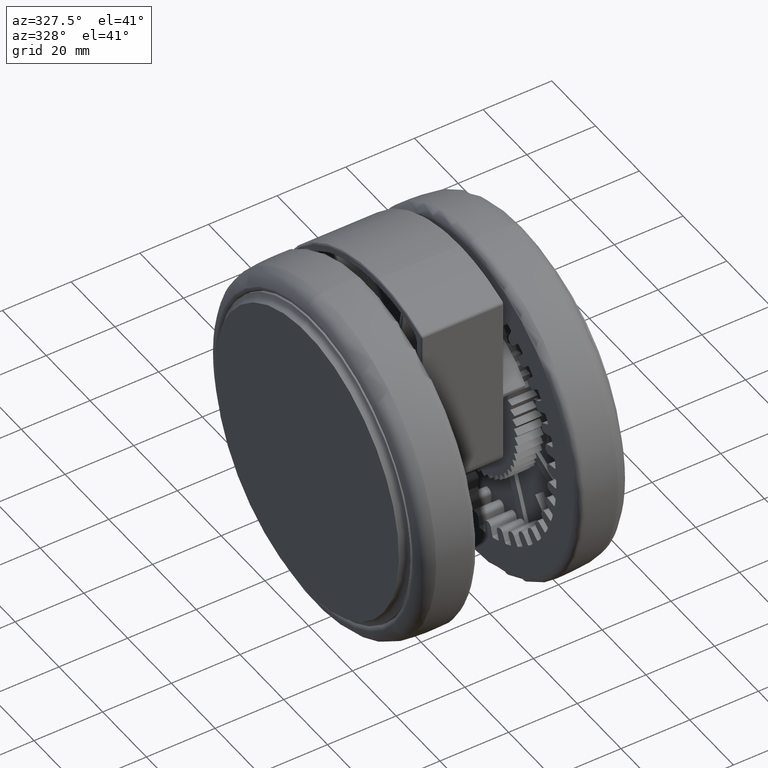
[diagram: clean part render]
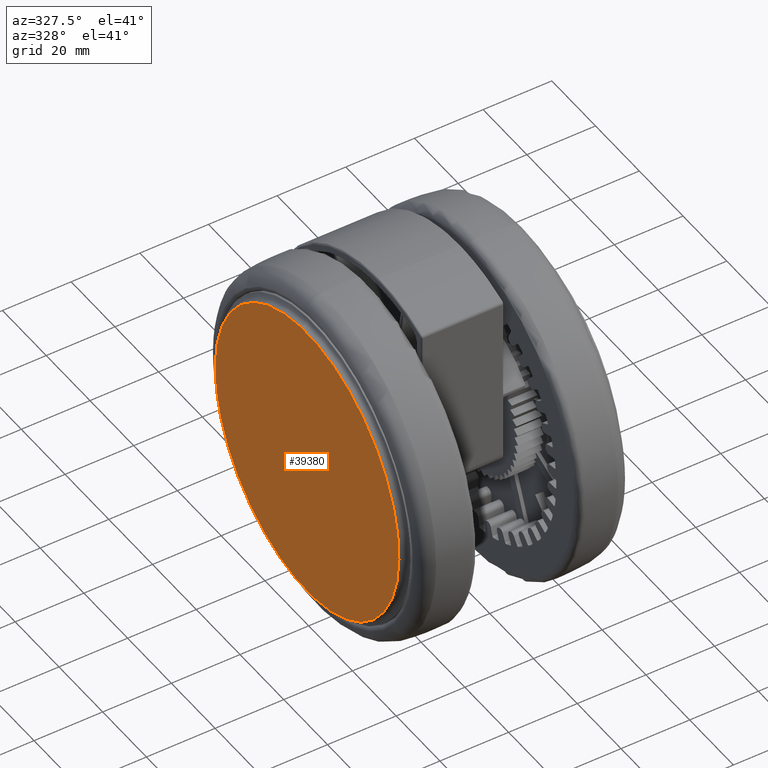
[diagram: same view with one face highlighted and labeled with its STEP entity id]
A machine part, auxiliary view. The second image highlights one B-rep face of the part: STEP entity #39380.
In plain terms, the highlighted planar face has unit normal (1, 0, 0).
Its self-contained STEP definition (entity closure, byte-faithful):
#266 = EDGE_CURVE ( 'NONE', #70132, #47455, #43859, .T. ) ;
#3700 = DIRECTION ( 'NONE',  ( 0.0000000000000000000, 0.0000000000000000000, -1.000000000000000000 ) ) ;
#3799 = FACE_OUTER_BOUND ( 'NONE', #11105, .T. ) ;
#6681 = CARTESIAN_POINT ( 'NONE',  ( 2.961426179468544800, 41.89544771951165800, -65.19999999999994600 ) ) ;
#6824 = ORIENTED_EDGE ( 'NONE', *, *, #65915, .T. ) ;
#9329 = CARTESIAN_POINT ( 'NONE',  ( -2.961427369016168300, -41.89548141869044400, -65.19999999999994600 ) ) ;
#11105 = EDGE_LOOP ( 'NONE', ( #20726, #6824 ) ) ;
#11180 = DIRECTION ( 'NONE',  ( -0.07051016129148471300, -0.9975110611690724000, 0.0000000000000000000 ) ) ;
#12432 = DIRECTION ( 'NONE',  ( 0.0000000000000000000, 0.0000000000000000000, -1.000000000000000000 ) ) ;
#18573 = AXIS2_PLACEMENT_3D ( 'NONE', #40860, #46815, #11180 ) ;
#20726 = ORIENTED_EDGE ( 'NONE', *, *, #266, .T. ) ;
#24387 = AXIS2_PLACEMENT_3D ( 'NONE', #33053, #3700, #33320 ) ;
#24427 = AXIS2_PLACEMENT_3D ( 'NONE', #48065, #12432, #54050 ) ;
#33053 = CARTESIAN_POINT ( 'NONE',  ( -5.947738144010394900E-007, -1.684958939041081300E-005, -65.19999999999994600 ) ) ;
#33320 = DIRECTION ( 'NONE',  ( 0.07051016129148469900, 0.9975110611690722900, 0.0000000000000000000 ) ) ;
#39380 = ADVANCED_FACE ( 'NONE', ( #3799 ), #76526, .F. ) ;
#40860 = CARTESIAN_POINT ( 'NONE',  ( -5.947738144010394900E-007, -1.684958939041081300E-005, -65.19999999999994600 ) ) ;
#43859 = CIRCLE ( 'NONE', #24387, 42.00000000000001400 ) ;
#46815 = DIRECTION ( 'NONE',  ( 0.0000000000000000000, 0.0000000000000000000, 1.000000000000000000 ) ) ;
#47455 = VERTEX_POINT ( 'NONE', #9329 ) ;
#48065 = CARTESIAN_POINT ( 'NONE',  ( -5.947738144010394900E-007, -1.684958939041081300E-005, -65.19999999999994600 ) ) ;
#54050 = DIRECTION ( 'NONE',  ( 0.07051016129148469900, 0.9975110611690722900, 0.0000000000000000000 ) ) ;
#58183 = CIRCLE ( 'NONE', #24427, 42.00000000000001400 ) ;
#65915 = EDGE_CURVE ( 'NONE', #47455, #70132, #58183, .T. ) ;
#70132 = VERTEX_POINT ( 'NONE', #6681 ) ;
#76526 = PLANE ( 'NONE',  #18573 ) ;